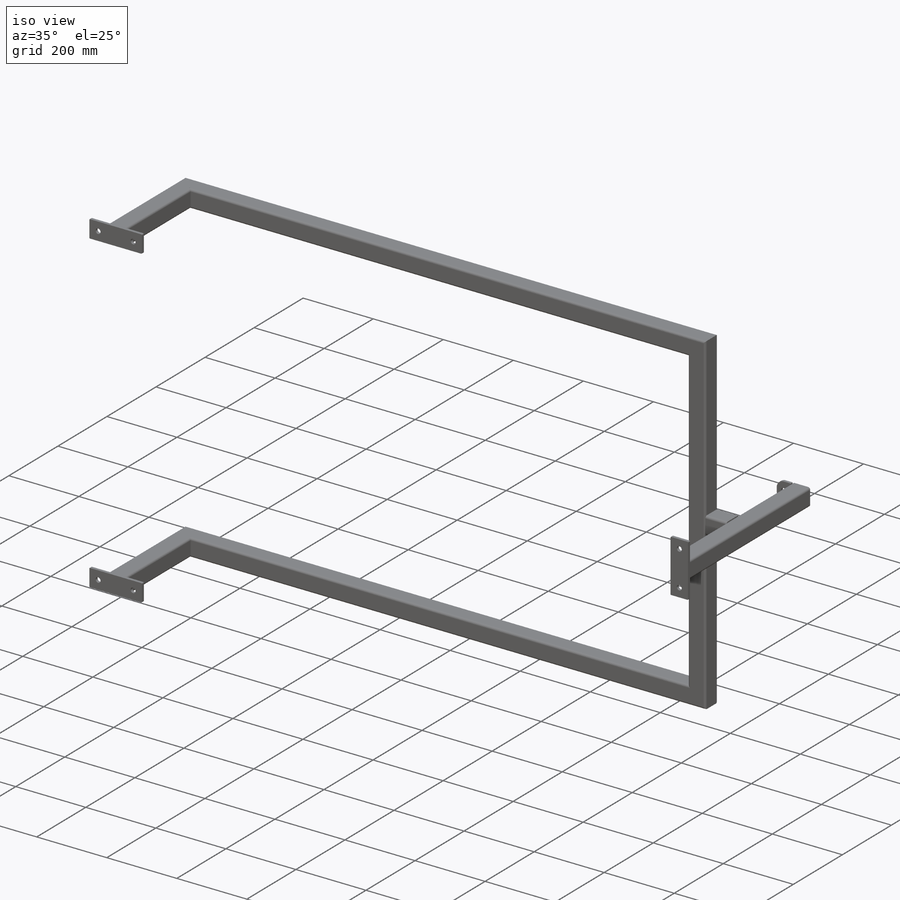
[diagram: iso view]
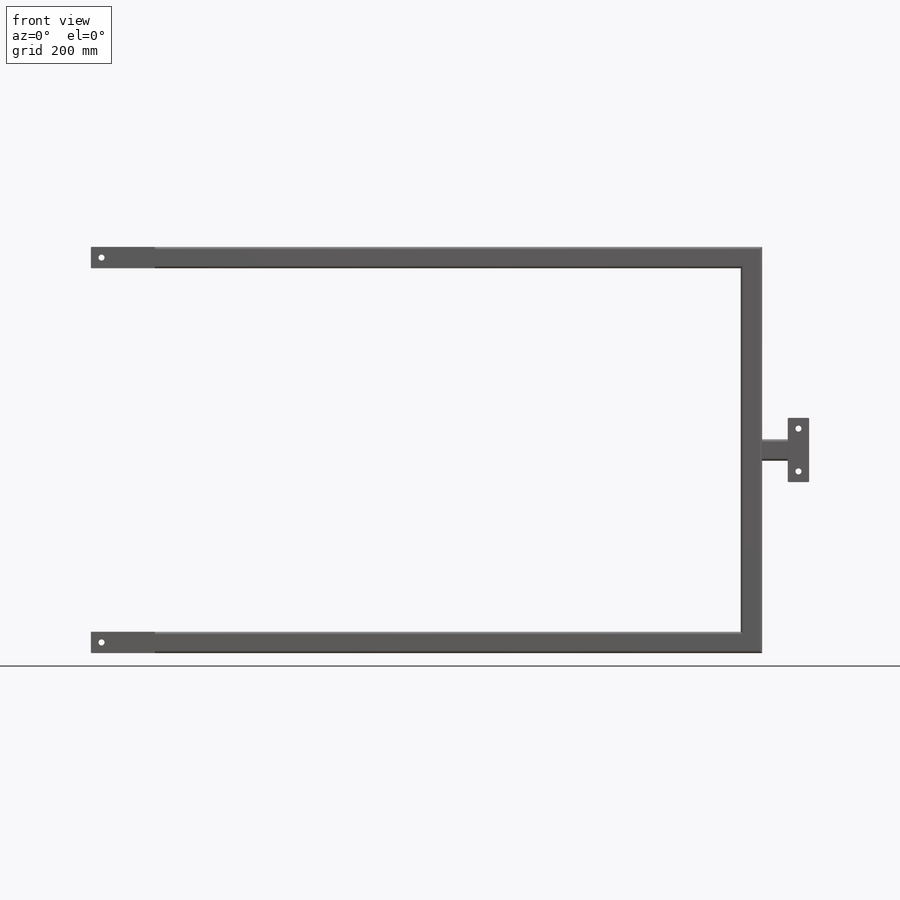
[diagram: front view]
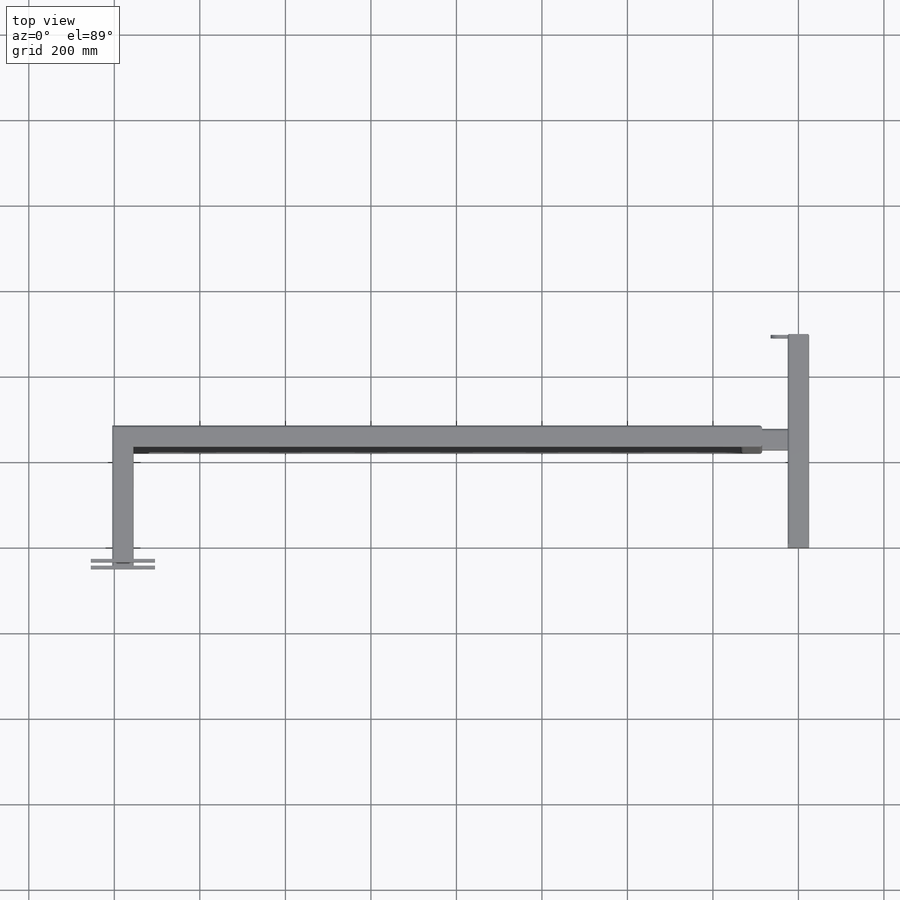
[diagram: top view]
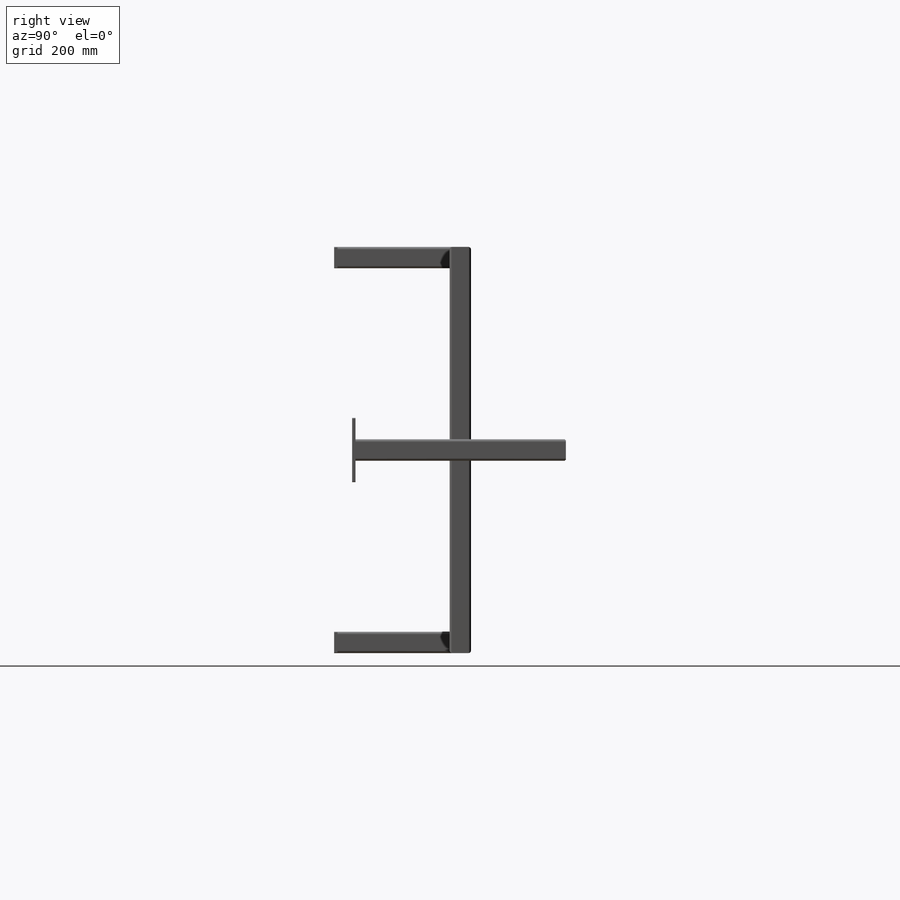
[diagram: right view]
SOLIDWORKS PART (.sldprt)
format: sldprt  version: not decoded by parser v0  size: 836,608 bytes
history: native  units: mm
features: sketch x14, plane x7, fillet x4, extrude x3, hole x3, material x1 + 10 further entries (+10 scaffold rows collapsed)
feature tree (52):
  scaffold x10  (default folders/planes/origin — collapsed)
  material  "1.4301 (X5CrNi18-10)"
  "Zuschnittslistenelement2"
  "Zuschnittslistenelement3"
  "Zuschnittslistenelement4"
  "Zuschnittslistenelement5"
  "Zuschnittslistenelement6"
  "Zuschnittslistenelement7"
  plane  "Default Plane"
  sketch  "Rahmen_Zuschnittslistenelement7"
  "Zuschnittslistenelement8"
  plane  "Default Plane"
  sketch  "Rahmen_Zuschnittslistenelement8"
  "Zuschnittslistenelement9"
  plane  "Default Plane"
  sketch  "Rahmen_Zuschnittslistenelement9"
  plane  "XY Vorne"
  plane  "XZ Oben"
  plane  "YZ Rechts"
  "Z"
  "Y"
  sketch  "Skizze1"  dims[c1.D3=14.0mm c1.D5=14.0mm c1.D1=~94.328315mm c1.D2=~38.160121mm c2.D1=50.0mm c2.D2=150.0mm c2.D4=25.0mm c2.D5=25.0mm]
  extrude  "Aufsatz-Linear austragen1"  Depth=8mm
  fillet  "Verrundung1"  Radius=2mm
  sketch  "3D-Skizze2"  dims[c1.D1=~58.133429mm c2.D1=~383.683789mm c3.D1=~65.099897mm c4.D1=~431.99421mm c5.D1=490.0mm c5.D2=110.0mm c5.D3=900.0mm c5.D4=~890.733423mm c6.D4=~1540.312822mm c7.D4=~304.866382mm c8.D4=~164.686755mm c9.D4=~783.891552mm c10.D4=~1946.780227mm c11.D4=~278.329187mm c12.D4=1470.0mm c12.D5=287.0mm]
  plane  "Ebene1"
  sketch  "Sketch1"  dims[c1.D1=6.35mm c1.D2=6.35mm c1.D3=6.35mm c1.D4=6.35mm c1.D5=6.35mm c1.D6=6.35mm c1.D7=6.35mm c1.D8=6.35mm c2.D1=6.604mm c2.D2=6.604mm c2.D3=6.604mm c2.D4=6.604mm c3.D1=8.0mm c3.D2=~4.762496mm c3.Thickness=3.0mm c3.D4=12.9032mm c3.D5=12.9286mm c3.V_leg=50.0mm c3.H_leg=20.0mm c4.D4=50.3428mm c4.D5=50.8508mm c5.D4=~41.274964mm c5.D5=~41.274964mm c5.D2=15.0mm c5.D3=15.0mm c6.D4=15.0mm c6.D5=15.0mm c6.D1=2.0mm c6.D2=3.0mm c6.D3=3.0mm]
  sketch  "Skizze3"  dims[c1.D1=150.0mm c1.D2=50.0mm c2.D1=50.0mm c2.D2=150.0mm c2.D3=150.0mm c2.D4=50.0mm c3.D3=50.0mm c3.D4=150.0mm]
  extrude  "Aufsatz-Linear austragen2"  Depth=8mm
  hole  "Ø14.0 (14) Durchmesser Bohrung1"  Diameter=14mm Depth=8mm
  sketch  "Skizze5"  dims[c1.D1=25.0mm c1.D2=25.0mm c1.D3=25.0mm c1.D4=25.0mm c1.D5=25.0mm c1.D6=25.0mm c2.D1=25.0mm c2.D2=25.0mm c2.D3=25.0mm c2.D4=25.0mm]
  sketch  "Skizze4"  dims[hole-wizard template sketch: 46 standard entries collapsed; hole parameters kept: c15.Bohrerdurchmesser=14.0mm c15.Bohrungstiefe=8.0mm c15.D3=~14.816244mm c15.Spitzenwinkel=180.0deg]
  fillet  "Verrundung2"  Radius=2mm
  fillet  "Verrundung3"  Radius=2mm
  sketch  "Skizze6"  dims[c1.D1=50.0mm c1.D2=40.0mm c2.D1=50.0mm c2.D2=40.0mm]
  extrude  "Aufsatz-Linear austragen3"  Depth=8mm
  hole  "Ø16.0 (16) Durchmesser Bohrung1"  Diameter=16mm Depth=7.999mm
  sketch  "Skizze8"
  sketch  "Skizze7"  dims[hole-wizard template sketch: 46 standard entries collapsed; hole parameters kept: c15.Bohrerdurchmesser=16.0mm c15.Bohrungstiefe=7.999mm c15.D3=~14.816244mm c15.Spitzenwinkel=180.0deg]
  fillet  "Verrundung4"  Radius=20mm
  hole  "Ø14.0 (14) Durchmesser Bohrung2"  Diameter=14mm Depth=8mm
  sketch  "Skizze10"  dims[D1=25.0mm D2=25.0mm]
  sketch  "Skizze9"  dims[hole-wizard template sketch: 46 standard entries collapsed; hole parameters kept: c15.Bohrerdurchmesser=14.0mm c15.Bohrungstiefe=8.0mm c15.D3=~14.816244mm c15.Spitzenwinkel=180.0deg]
decode coverage: 20 of 24 modeling features carry decoded parameters; 10 rows unclassified (native names shown)
note: ~ marks probable driven/reference dimensions
note: suppression state not decoded; provenance and decode notes live in map.json
